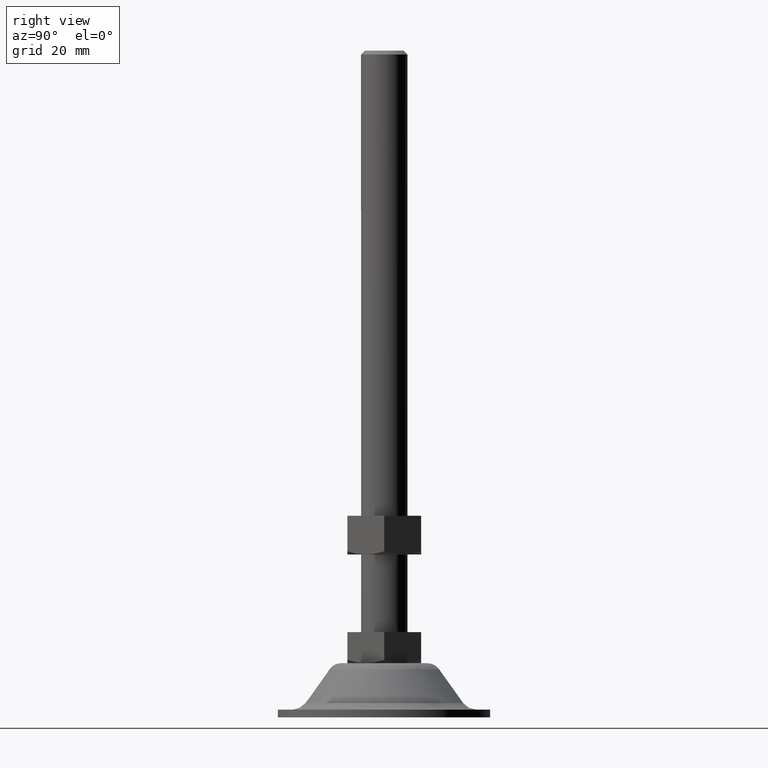
[diagram: clean part render]
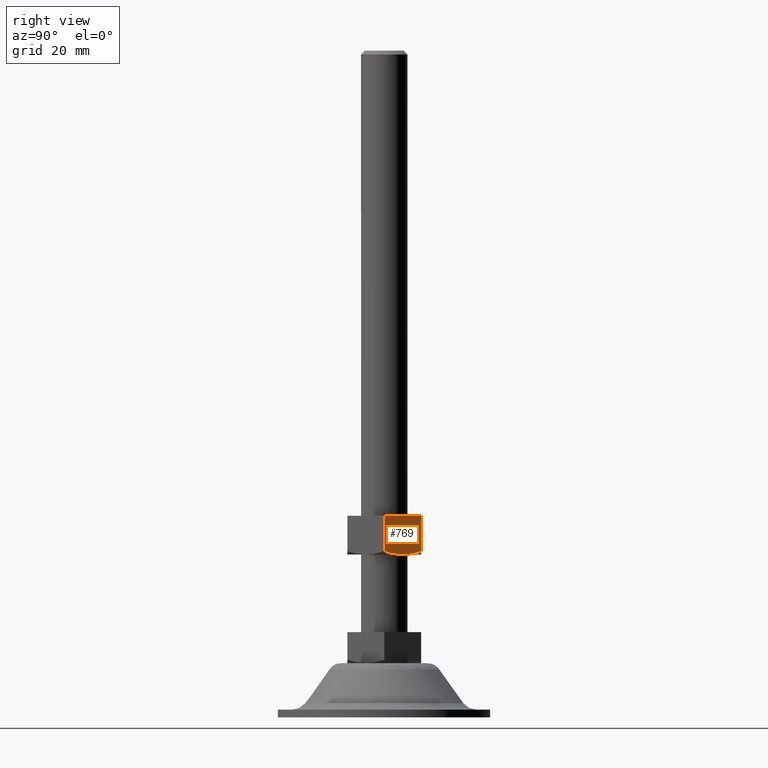
[diagram: same view with one face highlighted and labeled with its STEP entity id]
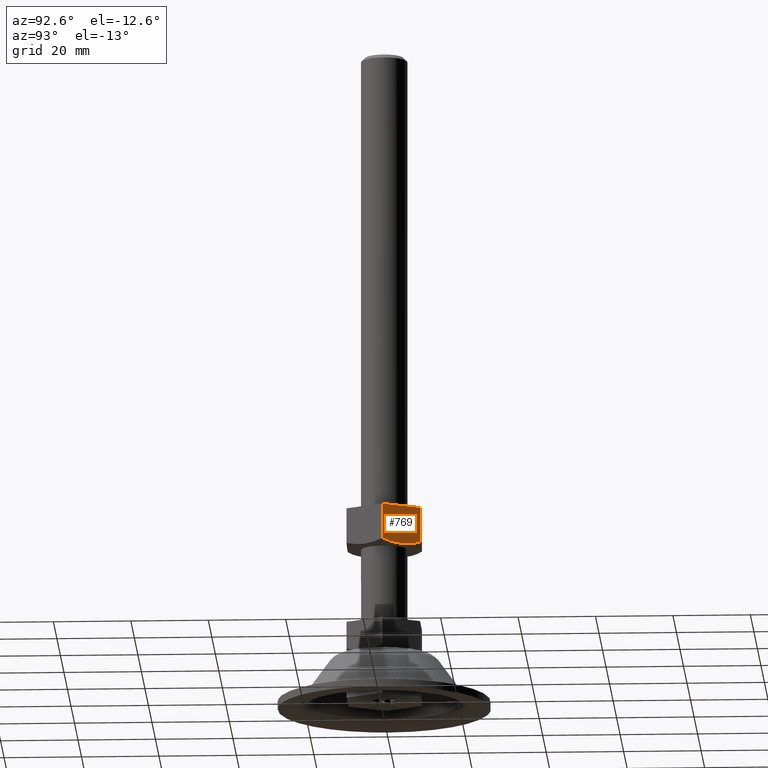
[diagram: same view with one face highlighted and labeled with its STEP entity id]
A machine part, right view. The second image highlights one B-rep face of the part: STEP entity #769.
A second angle (auxiliary view) of the same face is appended — the face is thin or edge-on in the first view.
In plain terms, the highlighted face is a freeform B-spline surface patch.
Its self-contained STEP definition (entity closure, byte-faithful):
#302=CARTESIAN_POINT('',(8.227241687009791,4.749999720045980,42.0));
#303=VERTEX_POINT('',#302);
#317=CARTESIAN_POINT('',(5.484827328095640,9.500000000000000,42.848505615152803));
#318=VERTEX_POINT('',#317);
#335=CARTESIAN_POINT('',(8.227241687009791,4.749999720045980,42.0));
#336=CARTESIAN_POINT('',(8.112393589852246,4.948922435731099,42.000001099127822));
#337=CARTESIAN_POINT('',(7.996988562016343,5.148809827701901,42.004845920706053));
#338=CARTESIAN_POINT('',(7.765462497252845,5.549824775895027,42.024220422591817));
#339=CARTESIAN_POINT('',(7.649230949599241,5.751143742329011,42.038873725891847));
#340=CARTESIAN_POINT('',(7.301699411228925,6.353086085181035,42.096877170711529));
#341=CARTESIAN_POINT('',(7.071565244363679,6.751690195250474,42.154303679999053));
#342=CARTESIAN_POINT('',(6.385259967792540,7.940405924557128,42.376053830824851));
#343=CARTESIAN_POINT('',(5.933170117271962,8.723448594808259,42.589655332973123));
#344=CARTESIAN_POINT('',(5.484827328095640,9.500000000000000,42.848505615152803));
#345=B_SPLINE_CURVE_WITH_KNOTS('',3,(#335,#336,#337,#338,#339,#340,#341,#342,#343,#344),.UNSPECIFIED.,.F.,.U.,(4,2,2,2,4),(0.500936405660705,0.562500000000000,0.625000000000000,0.750000000000000,1.0),.UNSPECIFIED.);
#346=EDGE_CURVE('',#303,#318,#345,.T.);
#367=CARTESIAN_POINT('',(10.969654999999999,0.0,42.848505615152803));
#368=VERTEX_POINT('',#367);
#395=CARTESIAN_POINT('',(10.969654999999999,0.0,42.848505615152803));
#396=CARTESIAN_POINT('',(10.521870922901829,0.775584851159879,42.589977357700981));
#397=CARTESIAN_POINT('',(10.070822132746409,1.556824351781581,42.376903233045489));
#398=CARTESIAN_POINT('',(9.387193746088956,2.740903571280358,42.155520606068777));
#399=CARTESIAN_POINT('',(9.158138930430953,3.137638190029686,42.098137084364808));
#400=CARTESIAN_POINT('',(8.697361681263192,3.935727877652236,42.020510902636822));
#401=CARTESIAN_POINT('',(8.465636942641494,4.337086939096865,42.000300336356602));
#402=CARTESIAN_POINT('',(8.230735304725824,4.743948552088280,42.000001100055101));
#403=CARTESIAN_POINT('',(8.228988550732147,4.746974019061062,41.999999995957850));
#404=CARTESIAN_POINT('',(8.227241687009791,4.749999720045980,42.0));
#405=B_SPLINE_CURVE_WITH_KNOTS('',3,(#395,#396,#397,#398,#399,#400,#401,#402,#403,#404),.UNSPECIFIED.,.F.,.U.,(4,2,2,2,4),(0.0,0.250000000000000,0.375000000000000,0.500000000000000,0.500936405632163),.UNSPECIFIED.);
#406=EDGE_CURVE('',#368,#303,#405,.T.);
#617=CARTESIAN_POINT('',(10.969654999999999,0.0,52.0));
#618=VERTEX_POINT('',#617);
#619=CARTESIAN_POINT('',(5.484827999999999,9.500000000000000,52.0));
#620=VERTEX_POINT('',#619);
#621=CARTESIAN_POINT('',(10.969654999999999,0.0,52.0));
#622=CARTESIAN_POINT('',(5.484827999999999,9.500000000000000,52.0));
#623=QUASI_UNIFORM_CURVE('',1,(#621,#622),.UNSPECIFIED.,.F.,.U.);
#624=EDGE_CURVE('',#618,#620,#623,.T.);
#680=CARTESIAN_POINT('',(10.969654999999999,0.0,52.0));
#681=CARTESIAN_POINT('',(10.969654999999999,0.0,42.848505615152803));
#682=QUASI_UNIFORM_CURVE('',1,(#680,#681),.UNSPECIFIED.,.F.,.U.);
#683=EDGE_CURVE('',#618,#368,#682,.T.);
#745=CARTESIAN_POINT('',(5.484827999999999,9.500000000000000,52.0));
#746=CARTESIAN_POINT('',(5.484827328095640,9.500000000000000,42.848505615152803));
#747=QUASI_UNIFORM_CURVE('',1,(#745,#746),.UNSPECIFIED.,.F.,.U.);
#748=EDGE_CURVE('',#620,#318,#747,.T.);
#757=CARTESIAN_POINT('',(5.210860777101825,9.974525197883668,41.500500019381953));
#758=CARTESIAN_POINT('',(11.243622251074820,-0.474525246687043,41.500500019381953));
#759=CARTESIAN_POINT('',(5.210860777101825,9.974525197883668,52.499500248838970));
#760=CARTESIAN_POINT('',(11.243622251074820,-0.474525246687043,52.499500248838970));
#761=B_SPLINE_SURFACE_WITH_KNOTS('',1,1,((#757,#759),(#758,#760)),.UNSPECIFIED.,.F.,.F.,.U.,(2,2),(2,2),(0.0,12.065523867409830),(0.0,10.999000229457030),.UNSPECIFIED.);
#762=ORIENTED_EDGE('',*,*,#683,.T.);
#763=ORIENTED_EDGE('',*,*,#406,.T.);
#764=ORIENTED_EDGE('',*,*,#346,.T.);
#765=ORIENTED_EDGE('',*,*,#748,.F.);
#766=ORIENTED_EDGE('',*,*,#624,.F.);
#767=EDGE_LOOP('',(#762,#763,#764,#765,#766));
#768=FACE_OUTER_BOUND('',#767,.T.);
#769=ADVANCED_FACE('',(#768),#761,.F.);